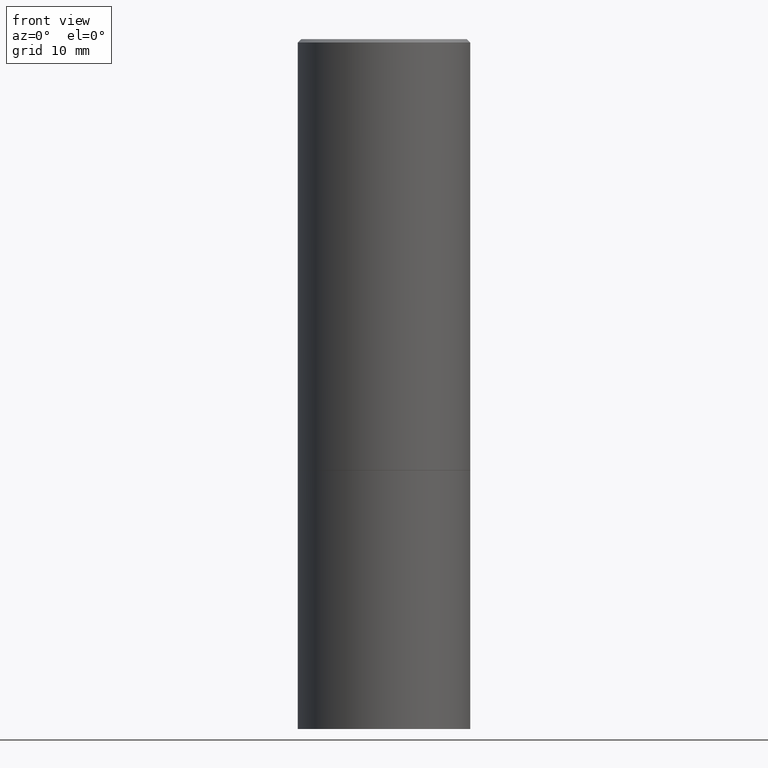
[diagram: clean part render]
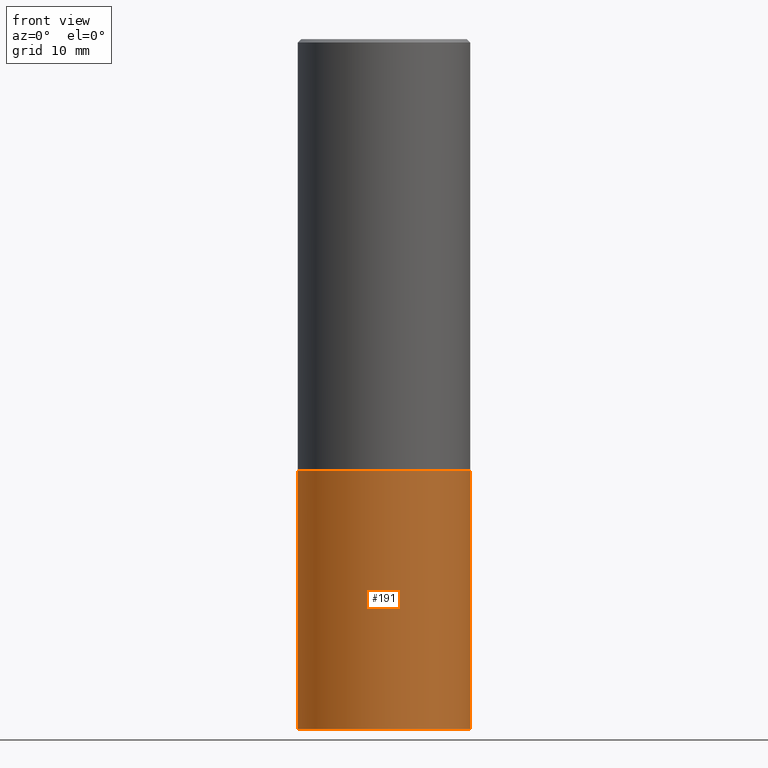
[diagram: same view with one face highlighted and labeled with its STEP entity id]
A machine part, front view. The second image highlights one B-rep face of the part: STEP entity #191.
In plain terms, the highlighted cylindrical surface (partial cylindrical patch) has radius 12.7 mm, axis along (-0, 0, 1).
Its self-contained STEP definition (entity closure, byte-faithful):
#21 = CARTESIAN_POINT ( 'NONE',  ( 0.5000000000000000000, -1.222018468595099830E-14, -2.500000000000000000 ) ) ;
#27 = FACE_OUTER_BOUND ( 'NONE', #114, .T. ) ;
#66 = AXIS2_PLACEMENT_3D ( 'NONE', #262, #127, #266 ) ;
#77 = CARTESIAN_POINT ( 'NONE',  ( 9.781875224740546387E-29, -1.396592535537258233E-14, -4.000000000000000000 ) ) ;
#82 = CIRCLE ( 'NONE', #273, 0.5000000000000000000 ) ;
#91 = CARTESIAN_POINT ( 'NONE',  ( -0.5000000000000000000, 3.552713678800500929E-15, -2.459467545127452891E-29 ) ) ;
#93 = DIRECTION ( 'NONE',  ( 1.000000000000000000, -6.982962677686269077E-15, 0.000000000000000000 ) ) ;
#111 = EDGE_CURVE ( 'NONE', #206, #264, #143, .T. ) ;
#113 = CARTESIAN_POINT ( 'NONE',  ( 6.113672015462842613E-29, -8.728703347107864943E-15, -2.500000000000000000 ) ) ;
#114 = EDGE_LOOP ( 'NONE', ( #245, #211, #354, #348 ) ) ;
#127 = DIRECTION ( 'NONE',  ( -2.445468806185136597E-29, 3.491481338843145583E-15, 1.000000000000000000 ) ) ;
#143 = LINE ( 'NONE', #91, #355 ) ;
#165 = DIRECTION ( 'NONE',  ( -2.445468806185136877E-29, 3.491481338843145188E-15, 1.000000000000000000 ) ) ;
#179 = EDGE_CURVE ( 'NONE', #206, #331, #202, .T. ) ;
#181 = EDGE_CURVE ( 'NONE', #264, #241, #82, .T. ) ;
#186 = CARTESIAN_POINT ( 'NONE',  ( 0.5000000000000000000, -3.491481338843133355E-15, 2.438088387897967896E-29 ) ) ;
#191 = ADVANCED_FACE ( 'NONE', ( #27 ), #230, .T. ) ;
#202 = CIRCLE ( 'NONE', #227, 0.5000000000000000000 ) ;
#204 = EDGE_CURVE ( 'NONE', #331, #241, #240, .T. ) ;
#206 = VERTEX_POINT ( 'NONE', #352 ) ;
#211 = ORIENTED_EDGE ( 'NONE', *, *, #179, .T. ) ;
#227 = AXIS2_PLACEMENT_3D ( 'NONE', #77, #291, #344 ) ;
#230 = CYLINDRICAL_SURFACE ( 'NONE', #66, 0.5000000000000000000 ) ;
#240 = LINE ( 'NONE', #186, #338 ) ;
#241 = VERTEX_POINT ( 'NONE', #21 ) ;
#245 = ORIENTED_EDGE ( 'NONE', *, *, #111, .F. ) ;
#259 = CARTESIAN_POINT ( 'NONE',  ( -0.5000000000000000000, -7.794600672439723496E-15, -2.500000000000000000 ) ) ;
#262 = CARTESIAN_POINT ( 'NONE',  ( 0.000000000000000000, 0.000000000000000000, 0.000000000000000000 ) ) ;
#264 = VERTEX_POINT ( 'NONE', #259 ) ;
#266 = DIRECTION ( 'NONE',  ( 1.000000000000000000, -6.982962677686266711E-15, 4.876176775795935793E-29 ) ) ;
#273 = AXIS2_PLACEMENT_3D ( 'NONE', #113, #323, #93 ) ;
#291 = DIRECTION ( 'NONE',  ( -2.445468806185136597E-29, 3.491481338843145583E-15, 1.000000000000000000 ) ) ;
#323 = DIRECTION ( 'NONE',  ( -2.445468806185136597E-29, 3.491481338843145583E-15, 1.000000000000000000 ) ) ;
#330 = DIRECTION ( 'NONE',  ( -2.445468806185136877E-29, 3.491481338843145188E-15, 1.000000000000000000 ) ) ;
#331 = VERTEX_POINT ( 'NONE', #361 ) ;
#338 = VECTOR ( 'NONE', #165, 39.37007874015748143 ) ;
#344 = DIRECTION ( 'NONE',  ( 1.000000000000000000, -6.982962677686266711E-15, 0.000000000000000000 ) ) ;
#348 = ORIENTED_EDGE ( 'NONE', *, *, #181, .F. ) ;
#352 = CARTESIAN_POINT ( 'NONE',  ( -0.5000000000000000000, -7.794600672439723496E-15, -4.000000000000000000 ) ) ;
#354 = ORIENTED_EDGE ( 'NONE', *, *, #204, .T. ) ;
#355 = VECTOR ( 'NONE', #330, 39.37007874015748143 ) ;
#361 = CARTESIAN_POINT ( 'NONE',  ( 0.5000000000000000000, -1.745740669421571411E-14, -4.000000000000000000 ) ) ;